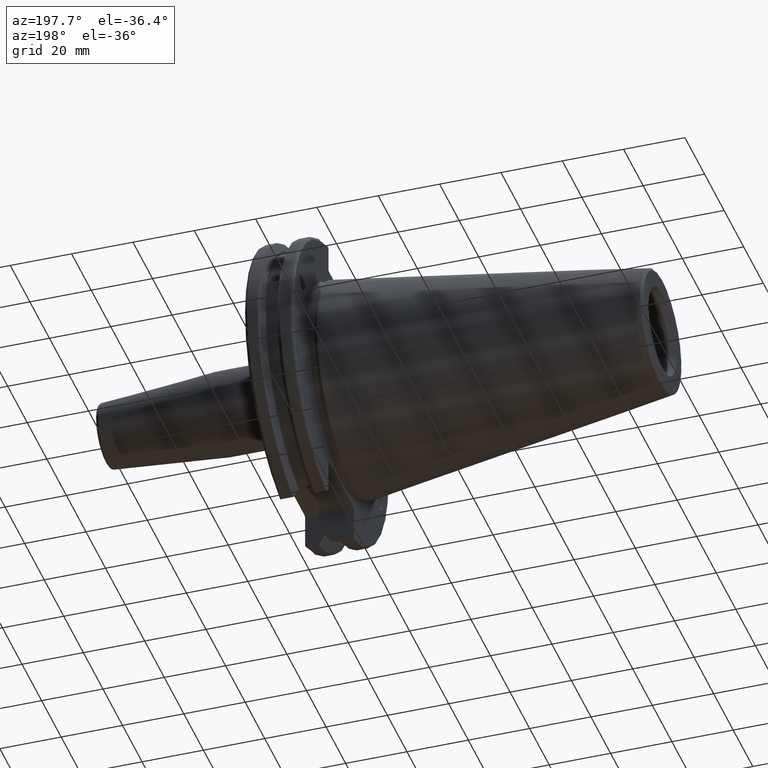
[diagram: clean part render]
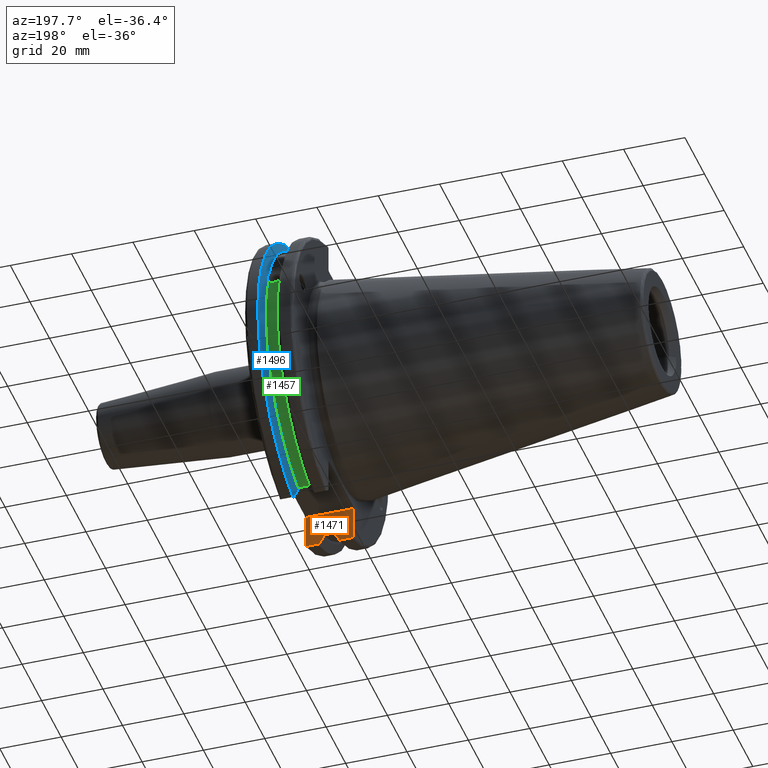
[diagram: same view with three faces highlighted in distinct colors, each labeled with its STEP entity id]
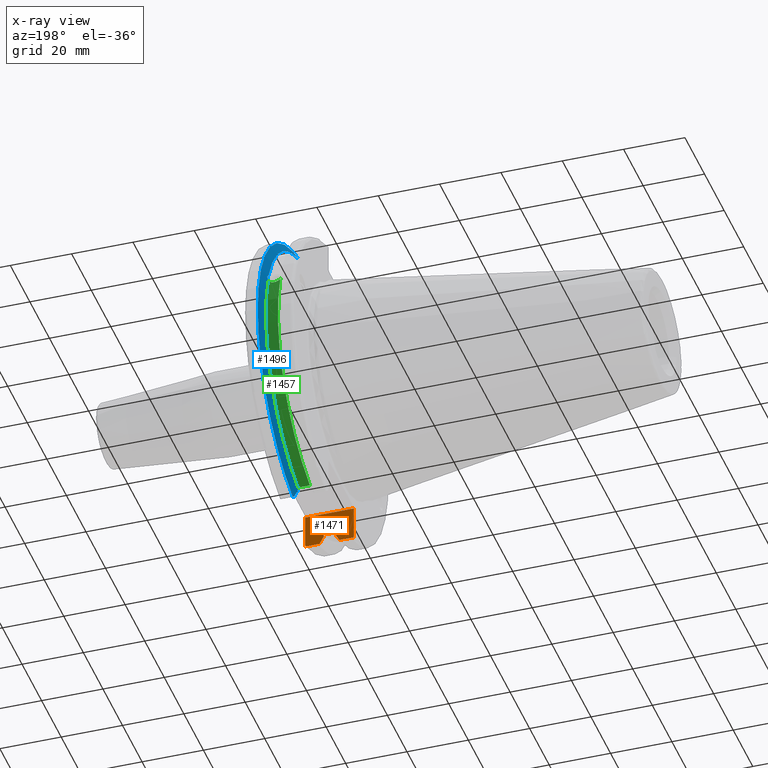
[diagram: x-ray of the same camera — body ghosted, the three highlighted faces saturated]
A machine part, auxiliary view with three faces highlighted in distinct colors.
The next image is the same camera in x-ray (body ghosted, the three faces saturated) — at least one of them is partly hidden behind the body in this view.
Their STEP definitions:

[orange] entity #1471 — the highlighted planar face has unit normal (0, -1, 0).
#15=(
BOUNDED_CURVE()
B_SPLINE_CURVE(2,(#2460,#2461,#2462),.UNSPECIFIED.,.F.,.F.)
B_SPLINE_CURVE_WITH_KNOTS((3,3),(0.,0.275823910673374),.UNSPECIFIED.)
CURVE()
GEOMETRIC_REPRESENTATION_ITEM()
RATIONAL_B_SPLINE_CURVE((1.,1.00038235574978,1.00012873636953))
REPRESENTATION_ITEM('')
);
#26=(
BOUNDED_CURVE()
B_SPLINE_CURVE(2,(#2865,#2866,#2867),.UNSPECIFIED.,.F.,.F.)
B_SPLINE_CURVE_WITH_KNOTS((3,3),(0.0558332664507492,0.331657177124507),
 .UNSPECIFIED.)
CURVE()
GEOMETRIC_REPRESENTATION_ITEM()
RATIONAL_B_SPLINE_CURVE((1.00012873636807,1.00038235574544,1.))
REPRESENTATION_ITEM('')
);
#60=B_SPLINE_CURVE_WITH_KNOTS('',3,(#2809,#2810,#2811,#2812,#2813,#2814),
 .UNSPECIFIED.,.F.,.F.,(4,2,4),(0.097707143645253,0.112358403262293,0.150882178076498),
 .UNSPECIFIED.);
#65=B_SPLINE_CURVE_WITH_KNOTS('',3,(#2870,#2871,#2872,#2873,#2874,#2875),
 .UNSPECIFIED.,.F.,.F.,(4,2,4),(0.452859340315922,0.491741138916218,0.506051994111223),
 .UNSPECIFIED.);
#91=LINE('',#2157,#181);
#110=LINE('',#2481,#200);
#111=LINE('',#2485,#201);
#112=LINE('',#2489,#202);
#135=LINE('',#2747,#225);
#147=LINE('',#2863,#237);
#148=LINE('',#2869,#238);
#149=LINE('',#2876,#239);
#181=VECTOR('',#1750,10.);
#200=VECTOR('',#1835,10.);
#201=VECTOR('',#1840,10.);
#202=VECTOR('',#1845,10.);
#225=VECTOR('',#1932,10.);
#237=VECTOR('',#1964,10.);
#238=VECTOR('',#1965,10.);
#239=VECTOR('',#1966,10.);
#325=PLANE('',#1634);
#392=FACE_OUTER_BOUND('',#493,.T.);
#493=EDGE_LOOP('',(#1237,#1238,#1239,#1240,#1241,#1242,#1243,#1244,#1245,
#1246,#1247,#1248));
#626=VERTEX_POINT('',#2154);
#627=VERTEX_POINT('',#2156);
#662=VERTEX_POINT('',#2457);
#663=VERTEX_POINT('',#2459);
#668=VERTEX_POINT('',#2479);
#669=VERTEX_POINT('',#2483);
#670=VERTEX_POINT('',#2487);
#704=VERTEX_POINT('',#2725);
#714=VERTEX_POINT('',#2745);
#723=VERTEX_POINT('',#2808);
#732=VERTEX_POINT('',#2864);
#733=VERTEX_POINT('',#2868);
#780=EDGE_CURVE('',#626,#627,#91,.T.);
#826=EDGE_CURVE('',#662,#663,#15,.T.);
#833=EDGE_CURVE('',#668,#662,#110,.T.);
#835=EDGE_CURVE('',#669,#668,#111,.T.);
#837=EDGE_CURVE('',#670,#669,#112,.T.);
#891=EDGE_CURVE('',#714,#704,#135,.T.);
#906=EDGE_CURVE('',#723,#626,#60,.T.);
#919=EDGE_CURVE('',#663,#723,#147,.T.);
#920=EDGE_CURVE('',#732,#670,#26,.T.);
#921=EDGE_CURVE('',#733,#732,#148,.T.);
#922=EDGE_CURVE('',#704,#733,#65,.T.);
#923=EDGE_CURVE('',#627,#714,#149,.T.);
#1237=ORIENTED_EDGE('',*,*,#906,.F.);
#1238=ORIENTED_EDGE('',*,*,#919,.F.);
#1239=ORIENTED_EDGE('',*,*,#826,.F.);
#1240=ORIENTED_EDGE('',*,*,#833,.F.);
#1241=ORIENTED_EDGE('',*,*,#835,.F.);
#1242=ORIENTED_EDGE('',*,*,#837,.F.);
#1243=ORIENTED_EDGE('',*,*,#920,.F.);
#1244=ORIENTED_EDGE('',*,*,#921,.F.);
#1245=ORIENTED_EDGE('',*,*,#922,.F.);
#1246=ORIENTED_EDGE('',*,*,#891,.F.);
#1247=ORIENTED_EDGE('',*,*,#923,.F.);
#1248=ORIENTED_EDGE('',*,*,#780,.F.);
#1471=ADVANCED_FACE('',(#392),#325,.F.);
#1634=AXIS2_PLACEMENT_3D('',#2862,#1962,#1963);
#1750=DIRECTION('',(0.,0.,1.));
#1835=DIRECTION('',(0.,0.,-1.));
#1840=DIRECTION('',(1.,0.,0.));
#1845=DIRECTION('',(0.,0.,1.));
#1932=DIRECTION('',(0.,0.,-1.));
#1962=DIRECTION('center_axis',(2.63163976207445E-16,-1.,0.));
#1963=DIRECTION('ref_axis',(-1.,-2.63163976207445E-16,0.));
#1964=DIRECTION('',(1.,2.63163976207445E-16,0.));
#1965=DIRECTION('',(1.,2.63163976207445E-16,0.));
#1966=DIRECTION('',(-1.,-2.63163976207445E-16,0.));
#2154=CARTESIAN_POINT('',(19.05,-12.95,-46.4407434937254));
#2156=CARTESIAN_POINT('',(19.05,-12.95,-35.806));
#2157=CARTESIAN_POINT('',(19.05,-12.95,-17.653));
#2457=CARTESIAN_POINT('',(13.0491,-12.95,-44.5791147973604));
#2459=CARTESIAN_POINT('',(14.3818103943757,-12.95,-46.9780755322917));
#2460=CARTESIAN_POINT('Ctrl Pts',(13.0491,-12.95,-44.5791147973604));
#2461=CARTESIAN_POINT('Ctrl Pts',(13.697995509466,-12.95,-45.749496680259));
#2462=CARTESIAN_POINT('Ctrl Pts',(14.3818103943757,-12.95,-46.9780755322917));
#2479=CARTESIAN_POINT('',(13.0491,-12.95,-43.7678716897452));
#2481=CARTESIAN_POINT('',(13.0491,-12.95,-17.653));
#2483=CARTESIAN_POINT('',(9.2191,-12.95,-43.7678716897452));
#2485=CARTESIAN_POINT('',(11.1341,-12.95,-43.7678716897452));
#2487=CARTESIAN_POINT('',(9.2191,-12.95,-44.5791147973604));
#2489=CARTESIAN_POINT('',(9.2191,-12.95,-17.653));
#2725=CARTESIAN_POINT('',(3.175,-12.95,-46.4407434937254));
#2745=CARTESIAN_POINT('',(3.175,-12.95,-35.806));
#2747=CARTESIAN_POINT('',(3.175,-12.95,-17.653));
#2808=CARTESIAN_POINT('',(18.9055020570566,-12.95,-46.9780755322917));
#2809=CARTESIAN_POINT('Ctrl Pts',(18.9055020570566,-12.95,-46.9780755322917));
#2810=CARTESIAN_POINT('Ctrl Pts',(18.9322353702005,-12.95,-46.9322596399785));
#2811=CARTESIAN_POINT('Ctrl Pts',(18.9549831813775,-12.95,-46.8849952622217));
#2812=CARTESIAN_POINT('Ctrl Pts',(19.0209992543299,-12.95,-46.7204975987179));
#2813=CARTESIAN_POINT('Ctrl Pts',(19.05,-12.95,-46.5691560764394));
#2814=CARTESIAN_POINT('Ctrl Pts',(19.05,-12.95,-46.4407434937254));
#2862=CARTESIAN_POINT('Origin',(20.05,-12.95,-35.306));
#2863=CARTESIAN_POINT('',(16.8551045170244,-12.95,-46.9780755322917));
#2864=CARTESIAN_POINT('',(7.88638960562425,-12.95,-46.9780755322918));
#2865=CARTESIAN_POINT('Ctrl Pts',(7.88638960562425,-12.95,-46.9780755322918));
#2866=CARTESIAN_POINT('Ctrl Pts',(8.57020449054166,-12.95,-45.7494966802452));
#2867=CARTESIAN_POINT('Ctrl Pts',(9.2191,-12.95,-44.5791147973604));
#2868=CARTESIAN_POINT('',(3.31949794294343,-12.95,-46.9780755322917));
#2869=CARTESIAN_POINT('',(5.39149548297563,-12.95,-46.9780755322917));
#2870=CARTESIAN_POINT('Ctrl Pts',(3.175,-12.95,-46.4407434937254));
#2871=CARTESIAN_POINT('Ctrl Pts',(3.175,-12.95,-46.5703494890597));
#2872=CARTESIAN_POINT('Ctrl Pts',(3.20453530071253,-12.95,-46.7230464903732));
#2873=CARTESIAN_POINT('Ctrl Pts',(3.27115672912336,-12.95,-46.887363294568));
#2874=CARTESIAN_POINT('Ctrl Pts',(3.29341556483838,-12.95,-46.9333752207329));
#2875=CARTESIAN_POINT('Ctrl Pts',(3.31949794294343,-12.95,-46.9780755322917));
#2876=CARTESIAN_POINT('',(19.06875,-12.95,-35.806));

[blue] entity #1496 — the highlighted conical surface has half-angle 60 deg.
#23=(
BOUNDED_CURVE()
B_SPLINE_CURVE(2,(#2790,#2791,#2792),.UNSPECIFIED.,.F.,.F.)
B_SPLINE_CURVE_WITH_KNOTS((3,3),(0.325260944932521,0.390084992222202),
 .UNSPECIFIED.)
CURVE()
GEOMETRIC_REPRESENTATION_ITEM()
RATIONAL_B_SPLINE_CURVE((1.00019140645994,1.00011477674864,1.))
REPRESENTATION_ITEM('')
);
#24=(
BOUNDED_CURVE()
B_SPLINE_CURVE(2,(#2804,#2805,#2806),.UNSPECIFIED.,.F.,.F.)
B_SPLINE_CURVE_WITH_KNOTS((3,3),(0.0558332664532001,0.331657177124504),
 .UNSPECIFIED.)
CURVE()
GEOMETRIC_REPRESENTATION_ITEM()
RATIONAL_B_SPLINE_CURVE((1.00012873636632,1.00038235574022,1.))
REPRESENTATION_ITEM('')
);
#29=(
BOUNDED_CURVE()
B_SPLINE_CURVE(2,(#2969,#2970,#2971),.UNSPECIFIED.,.F.,.F.)
B_SPLINE_CURVE_WITH_KNOTS((3,3),(0.,0.275823910671402),.UNSPECIFIED.)
CURVE()
GEOMETRIC_REPRESENTATION_ITEM()
RATIONAL_B_SPLINE_CURVE((1.,1.00038235574129,1.00012873636668))
REPRESENTATION_ITEM('')
);
#30=(
BOUNDED_CURVE()
B_SPLINE_CURVE(2,(#2986,#2987,#2988),.UNSPECIFIED.,.F.,.F.)
B_SPLINE_CURVE_WITH_KNOTS((3,3),(0.,0.0648240472897064),.UNSPECIFIED.)
CURVE()
GEOMETRIC_REPRESENTATION_ITEM()
RATIONAL_B_SPLINE_CURVE((1.,1.00011477674844,1.00019140645961))
REPRESENTATION_ITEM('')
);
#50=B_SPLINE_CURVE_WITH_KNOTS('',3,(#2594,#2595,#2596,#2597,#2598,#2599,
#2600,#2601),.UNSPECIFIED.,.F.,.F.,(4,2,2,4),(0.426712868358719,0.441644498666905,
0.480313313223129,0.518982127779353),.UNSPECIFIED.);
#54=B_SPLINE_CURVE_WITH_KNOTS('',3,(#2656,#2657,#2658,#2659,#2660,#2661,
#2662,#2663),.UNSPECIFIED.,.F.,.F.,(4,2,2,4),(0.518982127779353,0.557650942335576,
0.5963197568918,0.611251387199989),.UNSPECIFIED.);
#79=CONICAL_SURFACE('',#1671,47.8172386482472,1.0471975511966);
#417=FACE_OUTER_BOUND('',#519,.T.);
#519=EDGE_LOOP('',(#1356,#1357,#1358,#1359,#1360,#1361,#1362,#1363,#1364));
#575=CIRCLE('',#1608,46.4219772964944);
#597=CIRCLE('',#1664,49.2125);
#600=CIRCLE('',#1672,46.4219772964944);
#677=VERTEX_POINT('',#2591);
#678=VERTEX_POINT('',#2593);
#685=VERTEX_POINT('',#2654);
#694=VERTEX_POINT('',#2696);
#720=VERTEX_POINT('',#2787);
#721=VERTEX_POINT('',#2789);
#746=VERTEX_POINT('',#2966);
#747=VERTEX_POINT('',#2968);
#750=VERTEX_POINT('',#2984);
#847=EDGE_CURVE('',#678,#677,#50,.T.);
#855=EDGE_CURVE('',#677,#685,#54,.T.);
#867=EDGE_CURVE('',#694,#678,#575,.T.);
#900=EDGE_CURVE('',#720,#721,#23,.T.);
#905=EDGE_CURVE('',#720,#694,#24,.T.);
#950=EDGE_CURVE('',#747,#746,#29,.T.);
#958=EDGE_CURVE('',#750,#746,#30,.T.);
#959=EDGE_CURVE('',#721,#750,#597,.T.);
#965=EDGE_CURVE('',#685,#747,#600,.T.);
#1356=ORIENTED_EDGE('',*,*,#847,.T.);
#1357=ORIENTED_EDGE('',*,*,#855,.T.);
#1358=ORIENTED_EDGE('',*,*,#965,.T.);
#1359=ORIENTED_EDGE('',*,*,#950,.T.);
#1360=ORIENTED_EDGE('',*,*,#958,.F.);
#1361=ORIENTED_EDGE('',*,*,#959,.F.);
#1362=ORIENTED_EDGE('',*,*,#900,.F.);
#1363=ORIENTED_EDGE('',*,*,#905,.T.);
#1364=ORIENTED_EDGE('',*,*,#867,.T.);
#1496=ADVANCED_FACE('',(#417),#79,.T.);
#1608=AXIS2_PLACEMENT_3D('',#2697,#1885,#1886);
#1664=AXIS2_PLACEMENT_3D('',#2990,#2042,#2043);
#1671=AXIS2_PLACEMENT_3D('',#3003,#2059,#2060);
#1672=AXIS2_PLACEMENT_3D('',#3004,#2061,#2062);
#1885=DIRECTION('center_axis',(1.,0.,0.));
#1886=DIRECTION('ref_axis',(0.,0.,-1.));
#2042=DIRECTION('center_axis',(1.,0.,0.));
#2043=DIRECTION('ref_axis',(0.,0.,-1.));
#2059=DIRECTION('center_axis',(1.,0.,0.));
#2060=DIRECTION('ref_axis',(0.,1.,0.));
#2061=DIRECTION('center_axis',(1.,0.,0.));
#2062=DIRECTION('ref_axis',(0.,0.,-1.));
#2591=CARTESIAN_POINT('',(13.2341,43.923494649906,15.9868446375166));
#2593=CARTESIAN_POINT('',(13.0491,43.9096390749305,15.0646464421033));
#2594=CARTESIAN_POINT('Ctrl Pts',(13.0491,43.9096390749305,15.0646464421033));
#2595=CARTESIAN_POINT('Ctrl Pts',(13.0660815609661,43.9250360001461,15.1104047527575));
#2596=CARTESIAN_POINT('Ctrl Pts',(13.0821132459668,43.9385582852181,15.1564111356409));
#2597=CARTESIAN_POINT('Ctrl Pts',(13.1358132615496,43.9797830409459,15.3217566390709));
#2598=CARTESIAN_POINT('Ctrl Pts',(13.1719838933644,43.9989016655819,15.4570249042868));
#2599=CARTESIAN_POINT('Ctrl Pts',(13.2212913174802,43.9931221605126,15.7289849146254));
#2600=CARTESIAN_POINT('Ctrl Pts',(13.2341,43.9675796948952,15.8657219718732));
#2601=CARTESIAN_POINT('Ctrl Pts',(13.2341,43.923494649906,15.9868446375166));
#2654=CARTESIAN_POINT('',(13.0491,43.3201030900029,16.684383248648));
#2656=CARTESIAN_POINT('Ctrl Pts',(13.2341,43.923494649906,15.9868446375166));
#2657=CARTESIAN_POINT('Ctrl Pts',(13.2341,43.8794096049169,16.10796730316));
#2658=CARTESIAN_POINT('Ctrl Pts',(13.2212913174802,43.8110833825827,16.2291323464527));
#2659=CARTESIAN_POINT('Ctrl Pts',(13.1719838933644,43.6406982153492,16.441180795372));
#2660=CARTESIAN_POINT('Ctrl Pts',(13.1358132615496,43.5391037343221,16.5325130832406));
#2661=CARTESIAN_POINT('Ctrl Pts',(13.0821132459668,43.4012416983557,16.6326763251437));
#2662=CARTESIAN_POINT('Ctrl Pts',(13.0660815609661,43.3613106941341,16.6592273018006));
#2663=CARTESIAN_POINT('Ctrl Pts',(13.0491,43.3201030900029,16.684383248648));
#2696=CARTESIAN_POINT('',(13.0491,12.95,-44.5791147973605));
#2697=CARTESIAN_POINT('Origin',(13.0491,0.,0.));
#2787=CARTESIAN_POINT('',(14.3818103943757,12.95,-46.9780755322918));
#2789=CARTESIAN_POINT('',(14.6602090340487,13.4317035994433,-47.3440544806494));
#2790=CARTESIAN_POINT('Ctrl Pts',(14.3818103943757,12.95,-46.9780755322918));
#2791=CARTESIAN_POINT('Ctrl Pts',(14.5199310333617,13.1896660169965,-47.1601640966264));
#2792=CARTESIAN_POINT('Ctrl Pts',(14.6602090340487,13.4317035994433,-47.3440544806494));
#2804=CARTESIAN_POINT('Ctrl Pts',(14.3818103943757,12.95,-46.9780755322918));
#2805=CARTESIAN_POINT('Ctrl Pts',(13.6979955094851,12.95,-45.7494966802933));
#2806=CARTESIAN_POINT('Ctrl Pts',(13.0491,12.95,-44.5791147973604));
#2966=CARTESIAN_POINT('',(14.3818103943757,12.95,46.9780755322918));
#2968=CARTESIAN_POINT('',(13.0491,12.95,44.5791147973604));
#2969=CARTESIAN_POINT('Ctrl Pts',(13.0491,12.95,44.5791147973604));
#2970=CARTESIAN_POINT('Ctrl Pts',(13.6979955094846,12.95,45.7494966802924));
#2971=CARTESIAN_POINT('Ctrl Pts',(14.3818103943757,12.95,46.9780755322918));
#2984=CARTESIAN_POINT('',(14.6602090340487,13.4317035994433,47.3440544806494));
#2986=CARTESIAN_POINT('Ctrl Pts',(14.6602090340487,13.4317035994433,47.3440544806494));
#2987=CARTESIAN_POINT('Ctrl Pts',(14.5199310333618,13.1896660169966,47.1601640966264));
#2988=CARTESIAN_POINT('Ctrl Pts',(14.3818103943757,12.95,46.9780755322918));
#2990=CARTESIAN_POINT('Origin',(14.6602090340487,0.,0.));
#3003=CARTESIAN_POINT('Origin',(13.8546545170244,0.,0.));
#3004=CARTESIAN_POINT('Origin',(13.0491,0.,0.));

[green] entity #1457 — the highlighted cylindrical surface (partial cylindrical patch) has radius 45.6435 mm, axis along (1, 0, 0).
#51=B_SPLINE_CURVE_WITH_KNOTS('',3,(#2605,#2606,#2607,#2608,#2609,#2610,
#2611,#2612,#2613,#2614,#2615,#2616,#2617,#2618),.UNSPECIFIED.,.F.,.F.,
(4,2,2,2,2,2,4),(0.40154831257669,0.474697095495631,0.553813286063442,0.632929476631254,
0.712045667199066,0.791161857766877,0.864310640685816),.UNSPECIFIED.);
#121=LINE('',#2694,#211);
#211=VECTOR('',#1882,10.);
#277=CYLINDRICAL_SURFACE('',#1605,45.6435);
#378=FACE_OUTER_BOUND('',#473,.T.);
#473=EDGE_LOOP('',(#1147,#1148,#1149,#1150));
#573=CIRCLE('',#1604,45.6435);
#574=CIRCLE('',#1606,45.6435);
#679=VERTEX_POINT('',#2602);
#680=VERTEX_POINT('',#2604);
#692=VERTEX_POINT('',#2688);
#693=VERTEX_POINT('',#2692);
#849=EDGE_CURVE('',#680,#679,#51,.T.);
#863=EDGE_CURVE('',#692,#680,#573,.T.);
#865=EDGE_CURVE('',#693,#679,#574,.T.);
#866=EDGE_CURVE('',#693,#692,#121,.T.);
#1147=ORIENTED_EDGE('',*,*,#849,.T.);
#1148=ORIENTED_EDGE('',*,*,#865,.F.);
#1149=ORIENTED_EDGE('',*,*,#866,.T.);
#1150=ORIENTED_EDGE('',*,*,#863,.T.);
#1457=ADVANCED_FACE('',(#378),#277,.T.);
#1604=AXIS2_PLACEMENT_3D('',#2689,#1875,#1876);
#1605=AXIS2_PLACEMENT_3D('',#2691,#1878,#1879);
#1606=AXIS2_PLACEMENT_3D('',#2693,#1880,#1881);
#1875=DIRECTION('center_axis',(1.,0.,0.));
#1876=DIRECTION('ref_axis',(0.,0.,-1.));
#1878=DIRECTION('center_axis',(1.,0.,0.));
#1879=DIRECTION('ref_axis',(0.,1.,0.));
#1880=DIRECTION('center_axis',(1.,0.,0.));
#1881=DIRECTION('ref_axis',(0.,0.,-1.));
#1882=DIRECTION('',(-1.,0.,0.));
#2602=CARTESIAN_POINT('',(13.0491,43.1779814500336,14.7983448449669));
#2604=CARTESIAN_POINT('',(9.2191,43.1779814500336,14.7983448449669));
#2605=CARTESIAN_POINT('Ctrl Pts',(9.2191,43.1779814500335,14.7983448449669));
#2606=CARTESIAN_POINT('Ctrl Pts',(9.32532177598176,43.2545173750974,14.5750315766731));
#2607=CARTESIAN_POINT('Ctrl Pts',(9.47680807557665,43.3223492818373,14.3712521044637));
#2608=CARTESIAN_POINT('Ctrl Pts',(9.83560503400179,43.4340904392251,14.0300988117073));
#2609=CARTESIAN_POINT('Ctrl Pts',(10.0717203280543,43.4832903960863,13.8760243976176));
#2610=CARTESIAN_POINT('Ctrl Pts',(10.5891059167872,43.54802519266,13.6715068146718));
#2611=CARTESIAN_POINT('Ctrl Pts',(10.870379364774,43.5636826100883,13.6211104428929));
#2612=CARTESIAN_POINT('Ctrl Pts',(11.397820635226,43.5636826100883,13.6211104428929));
#2613=CARTESIAN_POINT('Ctrl Pts',(11.6790940832128,43.54802519266,13.6715068146718));
#2614=CARTESIAN_POINT('Ctrl Pts',(12.1964796719457,43.4832903960863,13.8760243976176));
#2615=CARTESIAN_POINT('Ctrl Pts',(12.4325949659982,43.4340904392251,14.0300988117073));
#2616=CARTESIAN_POINT('Ctrl Pts',(12.7913919244233,43.3223492818373,14.3712521044637));
#2617=CARTESIAN_POINT('Ctrl Pts',(12.9428782240182,43.2545173750974,14.5750315766731));
#2618=CARTESIAN_POINT('Ctrl Pts',(13.0491,43.1779814500336,14.7983448449669));
#2688=CARTESIAN_POINT('',(9.2191,12.95,-43.7678716897452));
#2689=CARTESIAN_POINT('Origin',(9.2191,0.,0.));
#2691=CARTESIAN_POINT('Origin',(11.1341,0.,0.));
#2692=CARTESIAN_POINT('',(13.0491,12.95,-43.7678716897452));
#2693=CARTESIAN_POINT('Origin',(13.0491,0.,0.));
#2694=CARTESIAN_POINT('',(11.1341,12.95,-43.7678716897452));